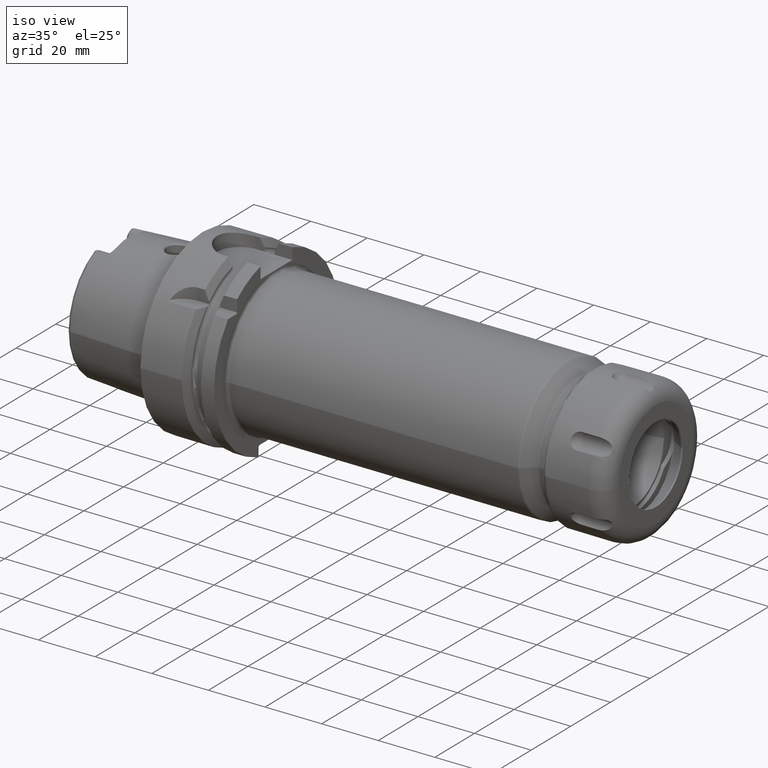
[diagram: clean part render]
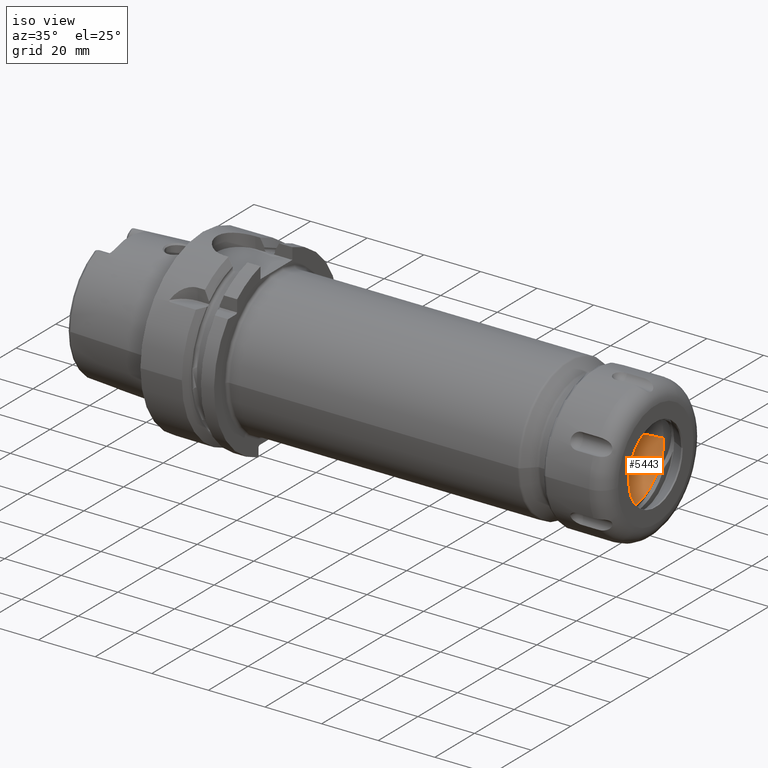
[diagram: same view with one face highlighted and labeled with its STEP entity id]
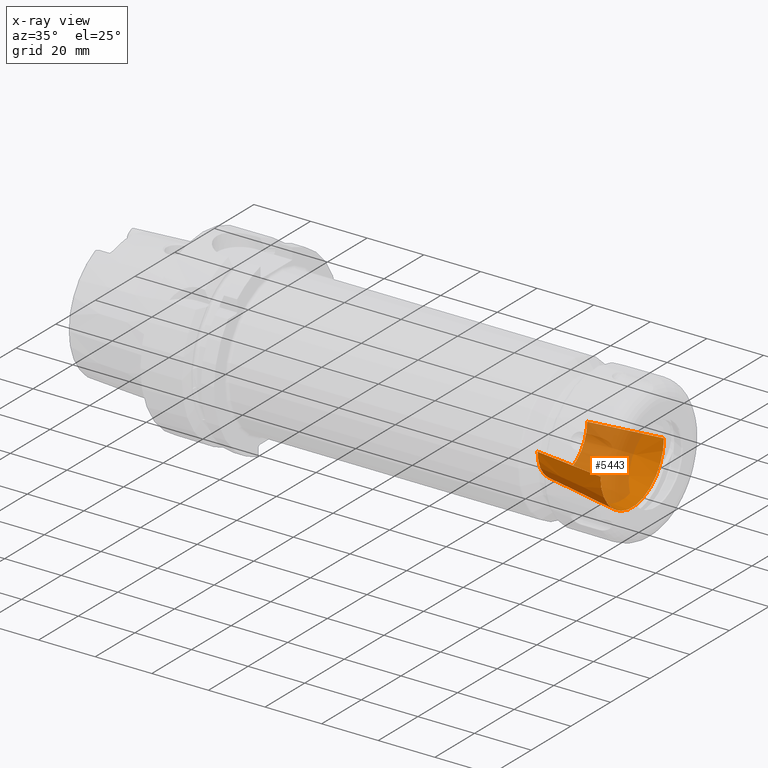
[diagram: x-ray of the same camera — body ghosted, the highlighted face saturated]
A machine part, iso view. The second image highlights one B-rep face of the part: STEP entity #5443.
The next image is the same camera in x-ray: the body ghosted, the highlighted face saturated — about 49% of this face is hidden behind the body in this view.
In plain terms, the highlighted conical surface has half-angle 8 deg.
Its self-contained STEP definition (entity closure, byte-faithful):
#2075=CARTESIAN_POINT('',(1.51671E2,0.E0,0.E0));
#2076=DIRECTION('',(1.E0,0.E0,0.E0));
#2077=DIRECTION('',(0.E0,-1.E0,0.E0));
#2078=AXIS2_PLACEMENT_3D('',#2075,#2076,#2077);
#2080=DIRECTION('',(-9.902680687416E-1,1.391731009601E-1,0.E0));
#2081=VECTOR('',#2080,2.489705249145E1);
#2082=CARTESIAN_POINT('',(1.51671E2,-1.6E1,0.E0));
#2083=LINE('',#2082,#2081);
#2084=DIRECTION('',(-9.902680687416E-1,-1.391731009601E-1,0.E0));
#2085=VECTOR('',#2084,2.489705249145E1);
#2086=CARTESIAN_POINT('',(1.51671E2,1.6E1,0.E0));
#2087=LINE('',#2086,#2085);
#2092=CARTESIAN_POINT('',(1.270162439119E2,0.E0,0.E0));
#2093=DIRECTION('',(-1.E0,0.E0,0.E0));
#2094=DIRECTION('',(0.E0,1.E0,0.E0));
#2095=AXIS2_PLACEMENT_3D('',#2092,#2093,#2094);
#3140=CARTESIAN_POINT('',(1.270162439119E2,1.2535E1,0.E0));
#3142=VERTEX_POINT('',#3140);
#3144=CARTESIAN_POINT('',(1.270162439119E2,-1.2535E1,0.E0));
#3146=VERTEX_POINT('',#3144);
#3148=CARTESIAN_POINT('',(1.51671E2,1.6E1,0.E0));
#3149=CARTESIAN_POINT('',(1.51671E2,-1.6E1,0.E0));
#3150=VERTEX_POINT('',#3148);
#3151=VERTEX_POINT('',#3149);
#5431=CARTESIAN_POINT('',(1.393436219560E2,0.E0,0.E0));
#5432=DIRECTION('',(1.E0,0.E0,0.E0));
#5433=DIRECTION('',(0.E0,-1.E0,0.E0));
#5434=AXIS2_PLACEMENT_3D('',#5431,#5432,#5433);
#5435=CONICAL_SURFACE('',#5434,1.42675E1,8.E0);
#5436=ORIENTED_EDGE('',*,*,#5411,.F.);
#5437=ORIENTED_EDGE('',*,*,#5426,.T.);
#5439=ORIENTED_EDGE('',*,*,#5438,.F.);
#5440=ORIENTED_EDGE('',*,*,#5422,.F.);
#5441=EDGE_LOOP('',(#5436,#5437,#5439,#5440));
#5442=FACE_OUTER_BOUND('',#5441,.F.);
#5443=ADVANCED_FACE('',(#5442),#5435,.F.);
#2079=CIRCLE('',#2078,1.6E1);
#2096=CIRCLE('',#2095,1.2535E1);
#5411=EDGE_CURVE('',#3151,#3150,#2079,.T.);
#5422=EDGE_CURVE('',#3150,#3142,#2087,.T.);
#5426=EDGE_CURVE('',#3151,#3146,#2083,.T.);
#5438=EDGE_CURVE('',#3142,#3146,#2096,.T.);